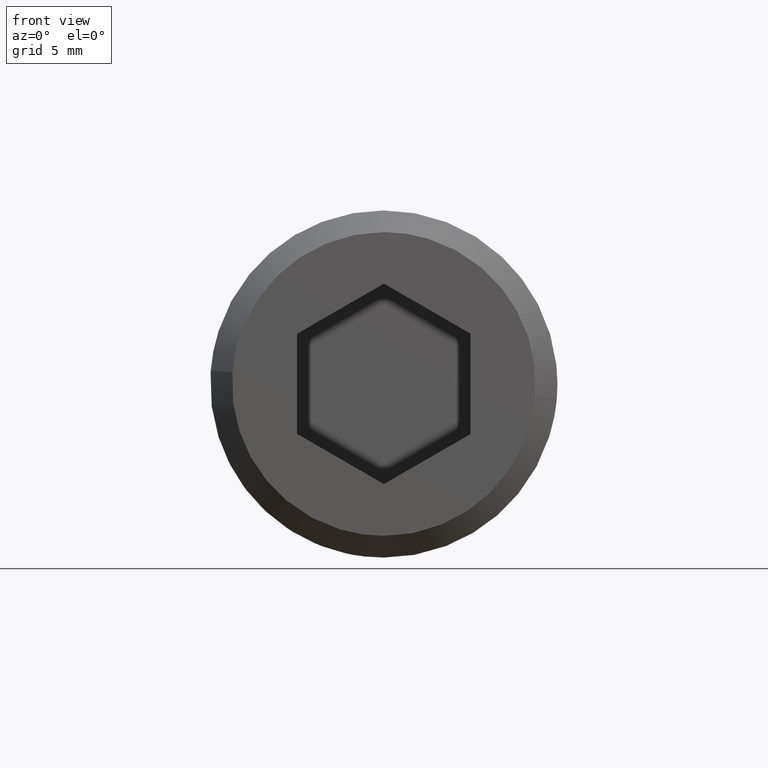
[diagram: clean part render]
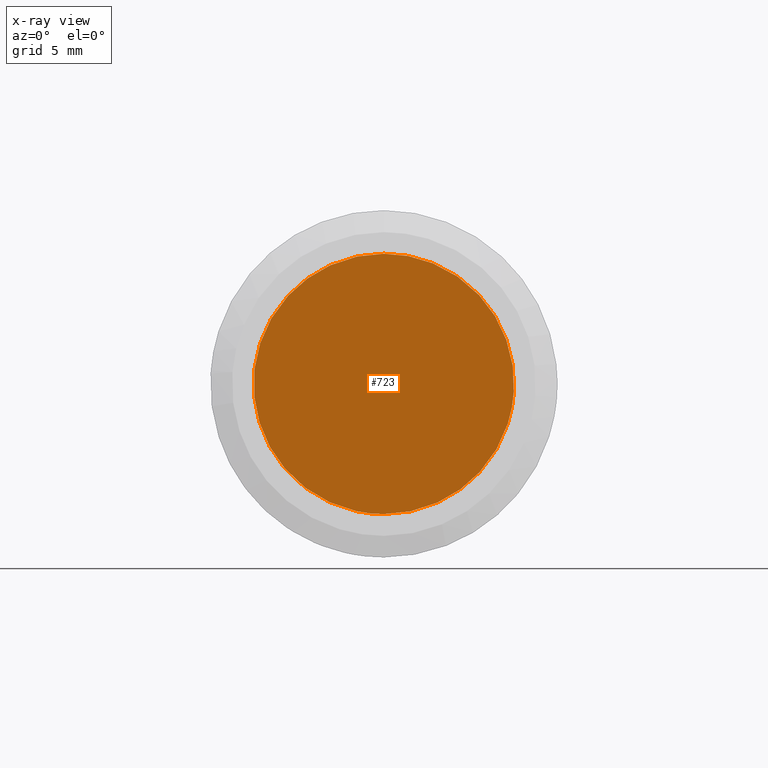
[diagram: x-ray — body ghosted, one internal face saturated and labeled with its STEP entity id]
A machine part, front view, then the same camera in x-ray: the body is ghosted and one INTERNAL B-rep face — a face not visible from any outside direction — is saturated and labeled: STEP entity #723.
In plain terms, the highlighted face is a freeform B-spline surface patch.
Its self-contained STEP definition (entity closure, byte-faithful):
#66=CARTESIAN_POINT('',(-5.958058090576522,-8.999999999999988,0.708197563715976));
#67=VERTEX_POINT('',#66);
#68=CARTESIAN_POINT('',(0.0,-9.0,-6.0));
#69=VERTEX_POINT('',#68);
#70=CARTESIAN_POINT('',(-5.958058090576522,-8.999999999999988,0.708197563715976));
#71=CARTESIAN_POINT('',(-5.999999999999999,-9.0,0.355340754335878));
#72=CARTESIAN_POINT('',(-6.0,-9.0,0.0));
#73=CARTESIAN_POINT('',(-6.0,-9.000000000000002,-6.0));
#74=CARTESIAN_POINT('',(0.0,-9.0,-6.0));
#82=(BOUNDED_CURVE()B_SPLINE_CURVE(2,(#70,#71,#72,#73,#74),.UNSPECIFIED.,.F.,.U.)B_SPLINE_CURVE_WITH_KNOTS((3,2,3),(0.229562696020986,0.250000000000000,0.500000000000000),.UNSPECIFIED.)CURVE()GEOMETRIC_REPRESENTATION_ITEM()RATIONAL_B_SPLINE_CURVE((0.956027190307925,0.976056209014870,1.0,0.707106781186548,1.0))REPRESENTATION_ITEM(''));
#83=EDGE_CURVE('',#67,#69,#82,.T.);
#85=CARTESIAN_POINT('',(5.988808889339792,-8.999999999999996,-0.366289621695814));
#86=VERTEX_POINT('',#85);
#87=CARTESIAN_POINT('',(0.0,-9.0,-6.0));
#88=CARTESIAN_POINT('',(5.644237926842608,-9.000000000000002,-6.000000000000001));
#89=CARTESIAN_POINT('',(5.988808889339792,-8.999999999999996,-0.366289621695814));
#97=(BOUNDED_CURVE()B_SPLINE_CURVE(2,(#87,#88,#89),.UNSPECIFIED.,.F.,.U.)B_SPLINE_CURVE_WITH_KNOTS((3,3),(0.500000000000000,0.739333008787393),.UNSPECIFIED.)CURVE()GEOMETRIC_REPRESENTATION_ITEM()RATIONAL_B_SPLINE_CURVE((1.0,0.719603938751809,0.976072141428927))REPRESENTATION_ITEM(''));
#98=EDGE_CURVE('',#69,#86,#97,.T.);
#165=CARTESIAN_POINT('',(0.0,-9.0,6.0));
#166=VERTEX_POINT('',#165);
#167=CARTESIAN_POINT('',(0.0,-9.0,6.0));
#168=CARTESIAN_POINT('',(-5.329054221188473,-9.000000000000002,6.000000000000001));
#169=CARTESIAN_POINT('',(-5.958058090576522,-8.999999999999988,0.708197563715976));
#177=(BOUNDED_CURVE()B_SPLINE_CURVE(2,(#167,#168,#169),.UNSPECIFIED.,.F.,.U.)B_SPLINE_CURVE_WITH_KNOTS((3,3),(0.0,0.229562696020986),.UNSPECIFIED.)CURVE()GEOMETRIC_REPRESENTATION_ITEM()RATIONAL_B_SPLINE_CURVE((1.0,0.731050572171677,0.956027190307925))REPRESENTATION_ITEM(''));
#178=EDGE_CURVE('',#166,#67,#177,.T.);
#212=CARTESIAN_POINT('',(5.988808889339792,-8.999999999999996,-0.366289621695814));
#213=CARTESIAN_POINT('',(6.0,-9.0,-0.183315769770015));
#214=CARTESIAN_POINT('',(6.0,-9.0,0.0));
#215=CARTESIAN_POINT('',(6.0,-9.000000000000002,6.0));
#216=CARTESIAN_POINT('',(0.0,-9.0,6.0));
#224=(BOUNDED_CURVE()B_SPLINE_CURVE(2,(#212,#213,#214,#215,#216),.UNSPECIFIED.,.F.,.U.)B_SPLINE_CURVE_WITH_KNOTS((3,2,3),(0.739333008787393,0.750000000000000,1.0),.UNSPECIFIED.)CURVE()GEOMETRIC_REPRESENTATION_ITEM()RATIONAL_B_SPLINE_CURVE((0.976072141428927,0.987502842434739,1.0,0.707106781186548,1.0))REPRESENTATION_ITEM(''));
#225=EDGE_CURVE('',#86,#166,#224,.T.);
#712=CARTESIAN_POINT('',(-6.599291187213048,-9.0,6.599399976741672));
#713=CARTESIAN_POINT('',(6.599253958151923,-9.0,6.599399976741672));
#714=CARTESIAN_POINT('',(-6.599291187213048,-9.0,-6.599400298606753));
#715=CARTESIAN_POINT('',(6.599253958151923,-9.0,-6.599400298606753));
#716=B_SPLINE_SURFACE_WITH_KNOTS('',1,1,((#712,#714),(#713,#715)),.UNSPECIFIED.,.F.,.F.,.U.,(2,2),(2,2),(0.0,13.198545145364969),(0.0,13.198800275348431),.UNSPECIFIED.);
#717=ORIENTED_EDGE('',*,*,#225,.F.);
#718=ORIENTED_EDGE('',*,*,#98,.F.);
#719=ORIENTED_EDGE('',*,*,#83,.F.);
#720=ORIENTED_EDGE('',*,*,#178,.F.);
#721=EDGE_LOOP('',(#717,#718,#719,#720));
#722=FACE_OUTER_BOUND('',#721,.T.);
#723=ADVANCED_FACE('',(#722),#716,.T.);